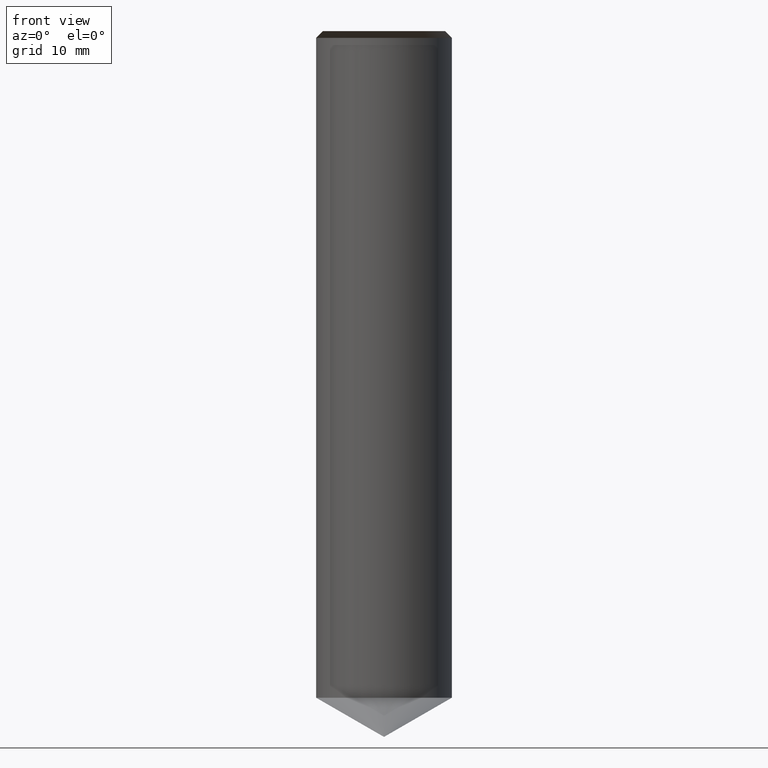
[diagram: clean part render]
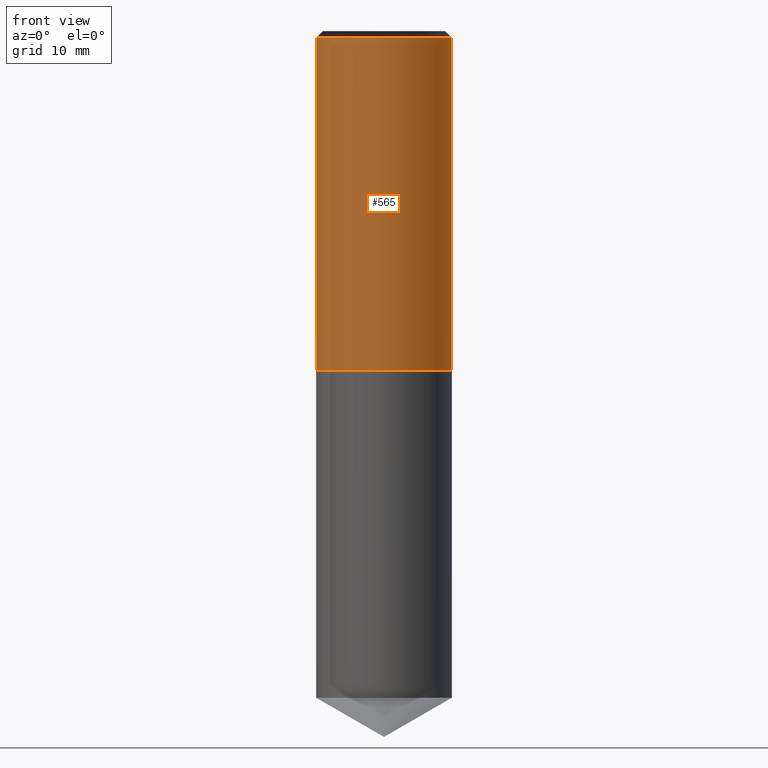
[diagram: same view with one face highlighted and labeled with its STEP entity id]
A machine part, front view. The second image highlights one B-rep face of the part: STEP entity #565.
In plain terms, the highlighted face is a freeform B-spline surface patch.
Its self-contained STEP definition (entity closure, byte-faithful):
#278=CARTESIAN_POINT('',(10.0,0.0,0.0));
#282=CARTESIAN_POINT('',(-10.0,0.0,0.0));
#283=CARTESIAN_POINT('',(10.0,0.0,49.0));
#287=CARTESIAN_POINT('',(-10.0,0.0,49.0));
#294=CARTESIAN_POINT('',(-10.0,-10.0,0.0));
#295=CARTESIAN_POINT('',(0.0,-10.0,0.0));
#296=CARTESIAN_POINT('',(10.0,-10.0,0.0));
#297=CARTESIAN_POINT('',(-10.0,-10.0,49.0));
#298=CARTESIAN_POINT('',(0.0,-10.0,49.0));
#299=CARTESIAN_POINT('',(10.0,-10.0,49.0));
#546=(
BOUNDED_SURFACE()
B_SPLINE_SURFACE(1,2,(
(#282,#294,#295,#296,#278),
(#287,#297,#298,#299,#283)
), .UNSPECIFIED.,.F.,.F.,.F.)
B_SPLINE_SURFACE_WITH_KNOTS((2,2),(3,2,3),(
0.0,1.0),(
0.0,0.5,1.0), .UNSPECIFIED.)
GEOMETRIC_REPRESENTATION_ITEM()
RATIONAL_B_SPLINE_SURFACE(((1.0,0.707106781187,1.0,0.707106781187,1.0),
(1.0,0.707106781187,1.0,0.707106781187,1.0)
))
REPRESENTATION_ITEM('')
SURFACE()
);
#547=(
BOUNDED_CURVE()
B_SPLINE_CURVE(1,(#287,#282),.UNSPECIFIED.,.F.,.F.)
B_SPLINE_CURVE_WITH_KNOTS((2,2),
(0.0,1.0),.UNSPECIFIED.)
CURVE()
GEOMETRIC_REPRESENTATION_ITEM()
RATIONAL_B_SPLINE_CURVE((1.0,1.0))
REPRESENTATION_ITEM('')
);
#548=(
BOUNDED_CURVE()
B_SPLINE_CURVE(2,(#282,#294,#295,#296,#278),.UNSPECIFIED.,.F.,.F.)
B_SPLINE_CURVE_WITH_KNOTS((3,2,3),
(0.0,0.5,1.0),.UNSPECIFIED.)
CURVE()
GEOMETRIC_REPRESENTATION_ITEM()
RATIONAL_B_SPLINE_CURVE((1.0,0.707106781187,1.0,0.707106781187,1.0))
REPRESENTATION_ITEM('')
);
#549=(
BOUNDED_CURVE()
B_SPLINE_CURVE(1,(#278,#283),.UNSPECIFIED.,.F.,.F.)
B_SPLINE_CURVE_WITH_KNOTS((2,2),
(0.0,1.0),.UNSPECIFIED.)
CURVE()
GEOMETRIC_REPRESENTATION_ITEM()
RATIONAL_B_SPLINE_CURVE((1.0,1.0))
REPRESENTATION_ITEM('')
);
#550=(
BOUNDED_CURVE()
B_SPLINE_CURVE(2,(#283,#299,#298,#297,#287),.UNSPECIFIED.,.F.,.F.)
B_SPLINE_CURVE_WITH_KNOTS((3,2,3),
(0.0,0.5,1.0),.UNSPECIFIED.)
CURVE()
GEOMETRIC_REPRESENTATION_ITEM()
RATIONAL_B_SPLINE_CURVE((1.0,0.707106781187,1.0,0.707106781187,1.0))
REPRESENTATION_ITEM('')
);
#551=VERTEX_POINT('',#278);
#552=VERTEX_POINT('',#282);
#553=VERTEX_POINT('',#283);
#554=VERTEX_POINT('',#287);
#555=EDGE_CURVE('',#554,#552,#547,.T.);
#556=EDGE_CURVE('',#552,#551,#548,.T.);
#557=EDGE_CURVE('',#551,#553,#549,.T.);
#558=EDGE_CURVE('',#553,#554,#550,.T.);
#559=ORIENTED_EDGE('',*,*,#555,.T.);
#560=ORIENTED_EDGE('',*,*,#556,.T.);
#561=ORIENTED_EDGE('',*,*,#557,.T.);
#562=ORIENTED_EDGE('',*,*,#558,.T.);
#563=EDGE_LOOP('',(#559,#560,#561,#562));
#564=FACE_OUTER_BOUND('',#563,.T.);
#565=ADVANCED_FACE('',(#564),#546,.T.);